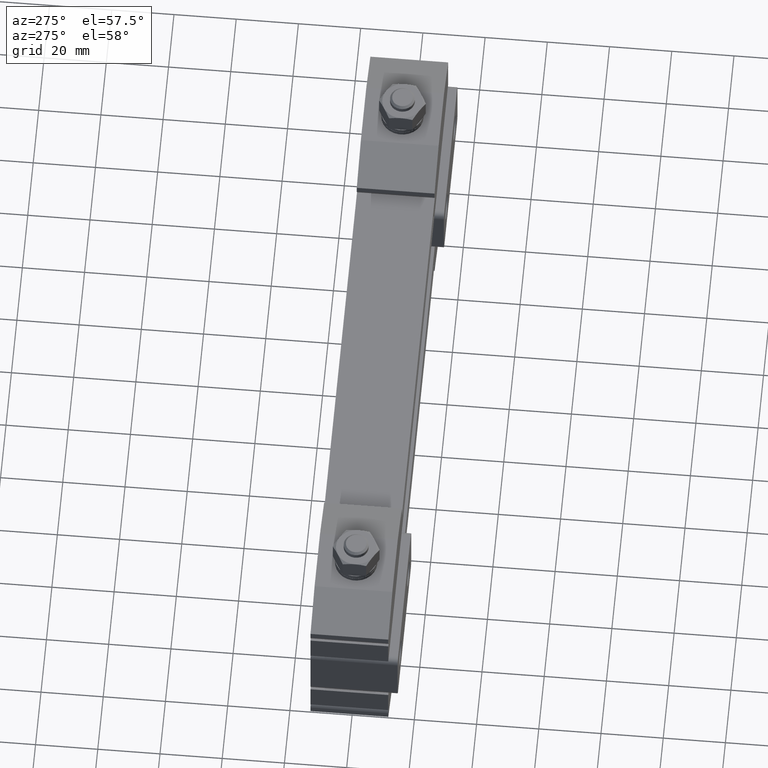
[diagram: clean part render]
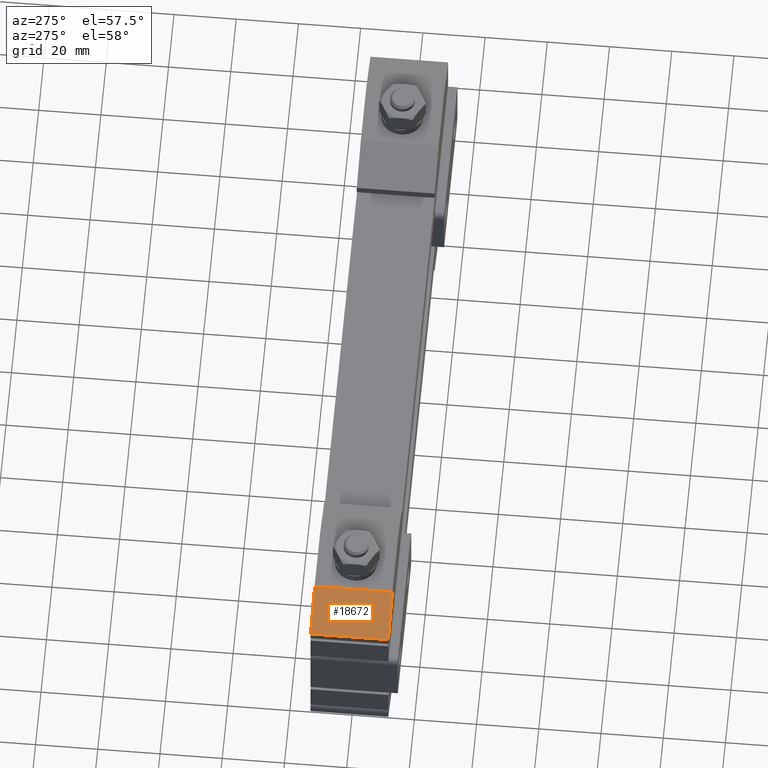
[diagram: same view with one face highlighted and labeled with its STEP entity id]
A machine part, auxiliary view. The second image highlights one B-rep face of the part: STEP entity #18672.
In plain terms, the highlighted planar face has unit normal (0.3162, -0, -0.9487).
Its self-contained STEP definition (entity closure, byte-faithful):
#579 = CARTESIAN_POINT ( 'NONE',  ( -110.0000000000000000, 12.50000000000000000, 37.00000000000000000 ) ) ;
#581 = DIRECTION ( 'NONE',  ( -0.9486832980505137700, 5.108563154370139500E-017, -0.3162277660168380000 ) ) ;
#668 = DIRECTION ( 'NONE',  ( 0.9486832980505137700, -5.108563154370139500E-017, 0.3162277660168380000 ) ) ;
#820 = CARTESIAN_POINT ( 'NONE',  ( -111.1999999999999900, 12.50000000000000000, 36.60000000000000100 ) ) ;
#1014 = AXIS2_PLACEMENT_3D ( 'NONE', #3247, #22804, #5035 ) ;
#3247 = CARTESIAN_POINT ( 'NONE',  ( -95.00000000000000000, 14.00000000000000000, 42.00000000000000000 ) ) ;
#4131 = CARTESIAN_POINT ( 'NONE',  ( -111.1999999999999900, -12.50000000000000000, 36.60000000000000100 ) ) ;
#4829 = LINE ( 'NONE', #12565, #8689 ) ;
#4968 = EDGE_CURVE ( 'NONE', #15912, #10551, #4829, .T. ) ;
#4977 = CARTESIAN_POINT ( 'NONE',  ( -95.00000000000000000, 12.50000000000000000, 42.00000000000000000 ) ) ;
#5035 = DIRECTION ( 'NONE',  ( 0.9486832980505138800, -5.108563154370139500E-017, 0.3162277660168380000 ) ) ;
#5301 = FACE_OUTER_BOUND ( 'NONE', #16522, .T. ) ;
#5546 = DIRECTION ( 'NONE',  ( -5.519574696289830600E-017, -1.000000000000000000, 4.040289502454684500E-018 ) ) ;
#6059 = VECTOR ( 'NONE', #13606, 1000.000000000000000 ) ;
#6883 = CARTESIAN_POINT ( 'NONE',  ( -110.0000000000000000, -12.50000000000000000, 37.00000000000000000 ) ) ;
#8298 = VERTEX_POINT ( 'NONE', #16478 ) ;
#8689 = VECTOR ( 'NONE', #5546, 1000.000000000000000 ) ;
#9935 = VECTOR ( 'NONE', #581, 999.9999999999998900 ) ;
#10026 = ORIENTED_EDGE ( 'NONE', *, *, #4968, .T. ) ;
#10512 = ORIENTED_EDGE ( 'NONE', *, *, #14928, .F. ) ;
#10551 = VERTEX_POINT ( 'NONE', #6883 ) ;
#10721 = LINE ( 'NONE', #4977, #6059 ) ;
#11910 = VERTEX_POINT ( 'NONE', #12840 ) ;
#12565 = CARTESIAN_POINT ( 'NONE',  ( -110.0000000000000000, 14.00000000000000000, 37.00000000000000000 ) ) ;
#12840 = CARTESIAN_POINT ( 'NONE',  ( -95.00000000000000000, -12.50000000000000000, 42.00000000000000000 ) ) ;
#13235 = LINE ( 'NONE', #4131, #9935 ) ;
#13606 = DIRECTION ( 'NONE',  ( -5.519574696289830600E-017, -1.000000000000000000, 4.040289502454684500E-018 ) ) ;
#14928 = EDGE_CURVE ( 'NONE', #11910, #10551, #13235, .T. ) ;
#15005 = ORIENTED_EDGE ( 'NONE', *, *, #15035, .F. ) ;
#15035 = EDGE_CURVE ( 'NONE', #15912, #8298, #19326, .T. ) ;
#15189 = EDGE_CURVE ( 'NONE', #8298, #11910, #10721, .T. ) ;
#15811 = PLANE ( 'NONE',  #1014 ) ;
#15912 = VERTEX_POINT ( 'NONE', #579 ) ;
#16478 = CARTESIAN_POINT ( 'NONE',  ( -95.00000000000000000, 12.50000000000000000, 42.00000000000000000 ) ) ;
#16522 = EDGE_LOOP ( 'NONE', ( #10026, #10512, #16694, #15005 ) ) ;
#16694 = ORIENTED_EDGE ( 'NONE', *, *, #15189, .F. ) ;
#18672 = ADVANCED_FACE ( 'NONE', ( #5301 ), #15811, .F. ) ;
#19326 = LINE ( 'NONE', #820, #21841 ) ;
#21841 = VECTOR ( 'NONE', #668, 999.9999999999998900 ) ;
#22804 = DIRECTION ( 'NONE',  ( 0.3162277660168380000, -2.128738292597559500E-017, -0.9486832980505138800 ) ) ;